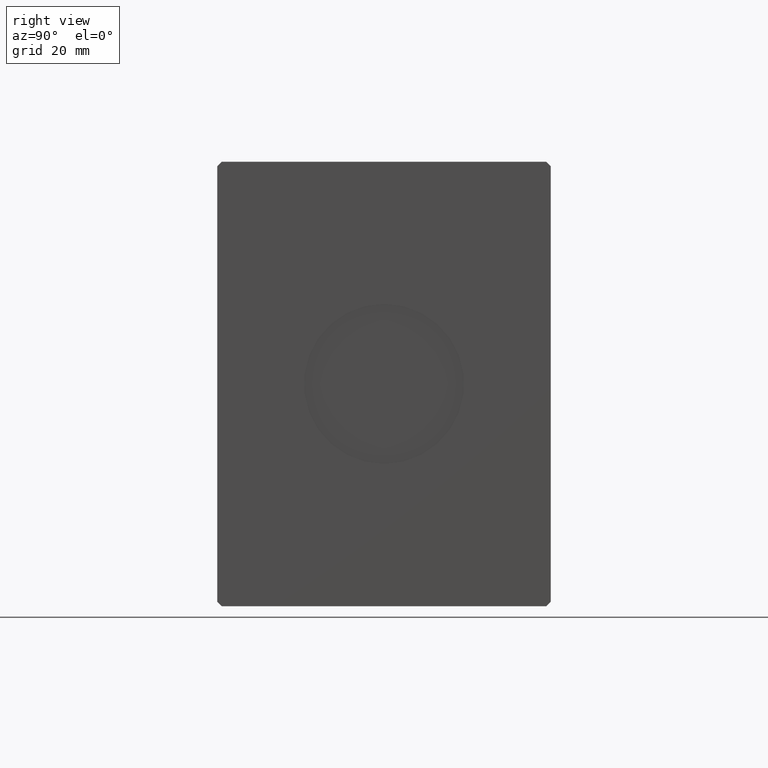
[diagram: clean part render]
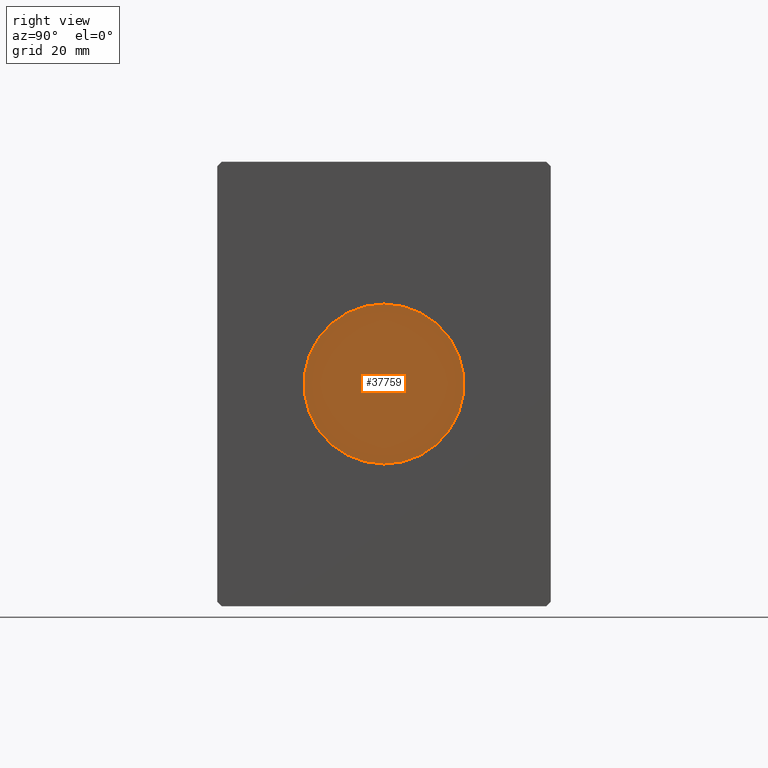
[diagram: same view with one face highlighted and labeled with its STEP entity id]
A machine part, right view. The second image highlights one B-rep face of the part: STEP entity #37759.
In plain terms, the highlighted planar face has unit normal (1, 0, 0).
Its self-contained STEP definition (entity closure, byte-faithful):
#1256 = DIRECTION ( 'NONE',  ( 1.000000000000000000, 0.000000000000000000, 0.000000000000000000 ) ) ;
#1653 = ORIENTED_EDGE ( 'NONE', *, *, #14109, .T. ) ;
#7209 = CIRCLE ( 'NONE', #30387, 18.00000000000000000 ) ;
#8292 = AXIS2_PLACEMENT_3D ( 'NONE', #27389, #20966, #23688 ) ;
#8327 = FACE_OUTER_BOUND ( 'NONE', #19765, .T. ) ;
#8493 = EDGE_CURVE ( 'NONE', #37199, #28293, #11023, .T. ) ;
#10789 = CARTESIAN_POINT ( 'NONE',  ( 106.7999999999999972, 0.000000000000000000, 0.000000000000000000 ) ) ;
#11023 = CIRCLE ( 'NONE', #26255, 18.00000000000000000 ) ;
#12977 = CARTESIAN_POINT ( 'NONE',  ( 106.7999999999999972, 2.204364238465235428E-15, 18.00000000000000000 ) ) ;
#14109 = EDGE_CURVE ( 'NONE', #28293, #37199, #7209, .T. ) ;
#19765 = EDGE_LOOP ( 'NONE', ( #1653, #29532 ) ) ;
#20377 = CARTESIAN_POINT ( 'NONE',  ( 106.7999999999999972, 0.000000000000000000, -18.00000000000000000 ) ) ;
#20966 = DIRECTION ( 'NONE',  ( 1.000000000000000000, 0.000000000000000000, 0.000000000000000000 ) ) ;
#22024 = CARTESIAN_POINT ( 'NONE',  ( 106.7999999999999972, 0.000000000000000000, 0.000000000000000000 ) ) ;
#23688 = DIRECTION ( 'NONE',  ( 0.000000000000000000, 0.000000000000000000, -1.000000000000000000 ) ) ;
#26255 = AXIS2_PLACEMENT_3D ( 'NONE', #22024, #34884, #40898 ) ;
#26945 = DIRECTION ( 'NONE',  ( 0.000000000000000000, 0.000000000000000000, -1.000000000000000000 ) ) ;
#27389 = CARTESIAN_POINT ( 'NONE',  ( 106.7999999999999972, 0.000000000000000000, 0.000000000000000000 ) ) ;
#28293 = VERTEX_POINT ( 'NONE', #20377 ) ;
#29532 = ORIENTED_EDGE ( 'NONE', *, *, #8493, .T. ) ;
#30387 = AXIS2_PLACEMENT_3D ( 'NONE', #10789, #1256, #26945 ) ;
#30509 = PLANE ( 'NONE',  #8292 ) ;
#34884 = DIRECTION ( 'NONE',  ( 1.000000000000000000, 0.000000000000000000, 0.000000000000000000 ) ) ;
#37199 = VERTEX_POINT ( 'NONE', #12977 ) ;
#37759 = ADVANCED_FACE ( 'NONE', ( #8327 ), #30509, .T. ) ;
#40898 = DIRECTION ( 'NONE',  ( 0.000000000000000000, 0.000000000000000000, -1.000000000000000000 ) ) ;